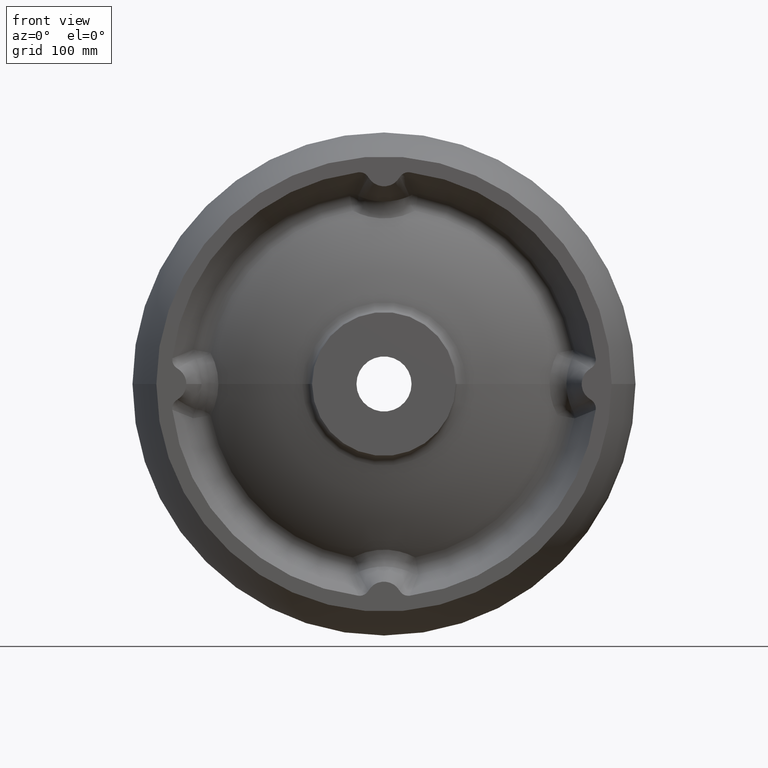
[diagram: clean part render]
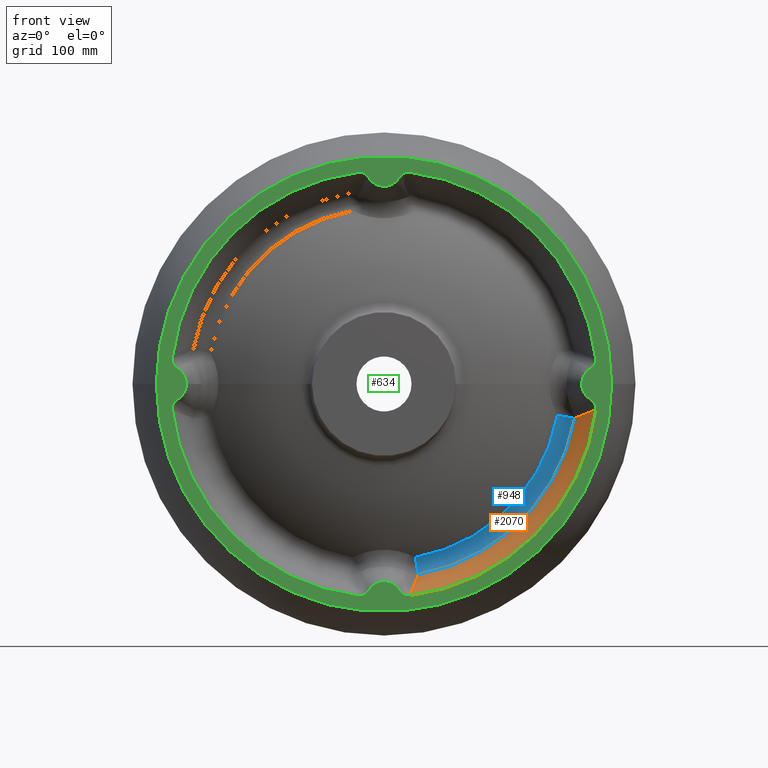
[diagram: same view with three faces highlighted in distinct colors, each labeled with its STEP entity id]
A machine part, front view with three faces highlighted in distinct colors.
Their STEP definitions:

[orange] entity #2070 — the highlighted conical surface has half-angle 30 deg.
#117 = EDGE_CURVE ( 'NONE', #495, #1536, #958, .T. ) ;
#138 = DIRECTION ( 'NONE',  ( -1.246832498358330100E-016, 1.000000000000000000, -0.0000000000000000000 ) ) ;
#153 = CARTESIAN_POINT ( 'NONE',  ( 28.65931379613292100, 28.42218461940035100, -159.0286620201841900 ) ) ;
#156 = AXIS2_PLACEMENT_3D ( 'NONE', #1457, #2312, #340 ) ;
#157 = AXIS2_PLACEMENT_3D ( 'NONE', #2086, #460, #274 ) ;
#180 = CARTESIAN_POINT ( 'NONE',  ( 169.3867513109305200, 11.76288286149700800, -24.92367951654268400 ) ) ;
#269 = CIRCLE ( 'NONE', #465, 178.0000000000000000 ) ;
#274 = DIRECTION ( 'NONE',  ( 1.000000000000000000, 1.246832498358330100E-016, 0.0000000000000000000 ) ) ;
#340 = DIRECTION ( 'NONE',  ( -1.000000000000000000, -1.288237174725316500E-016, 0.0000000000000000000 ) ) ;
#344 = VERTEX_POINT ( 'NONE', #1920 ) ;
#385 = ORIENTED_EDGE ( 'NONE', *, *, #2129, .F. ) ;
#460 = DIRECTION ( 'NONE',  ( 1.246832498358330100E-016, -1.000000000000000000, 0.0000000000000000000 ) ) ;
#465 = AXIS2_PLACEMENT_3D ( 'NONE', #1240, #138, #1428 ) ;
#495 = VERTEX_POINT ( 'NONE', #1084 ) ;
#496 = CARTESIAN_POINT ( 'NONE',  ( 28.65931379613292100, 28.42218461940035100, -159.0286620201841900 ) ) ;
#569 = CARTESIAN_POINT ( 'NONE',  ( 170.8561134018490300, 9.398945296449575400, -24.30111663218698900 ) ) ;
#668 = B_SPLINE_CURVE_WITH_KNOTS ( 'NONE', 3,
 ( #748, #2230, #2321, #569, #180, #1987, #1100, #917 ),
 .UNSPECIFIED., .F., .F.,
 ( 4, 2, 2, 4 ),
 ( 1.181742429579227300E-017, 0.008556115721820944600, 0.01711223144364187500, 0.03422446288728380600 ),
 .UNSPECIFIED. ) ;
#674 = EDGE_CURVE ( 'NONE', #2205, #495, #668, .T. ) ;
#748 = CARTESIAN_POINT ( 'NONE',  ( 176.6972662686038400, 4.422480786625532200E-014, -21.49595527540270000 ) ) ;
#756 = CONICAL_SURFACE ( 'NONE', #157, 178.0000000000000000, 0.5235987755982951500 ) ;
#862 = CARTESIAN_POINT ( 'NONE',  ( 24.92367951654272300, 11.76288286149696000, -169.3867513109306100 ) ) ;
#917 = CARTESIAN_POINT ( 'NONE',  ( 159.0286620201841900, 28.42218461940036900, -28.65931379613291700 ) ) ;
#927 = B_SPLINE_CURVE_WITH_KNOTS ( 'NONE', 3,
 ( #496, #1410, #1948, #862, #2119, #1059, #2284, #1236 ),
 .UNSPECIFIED., .F., .F.,
 ( 4, 2, 2, 4 ),
 ( 4.234999717485956500E-017, 0.01711223144364188600, 0.02566834716546283200, 0.03422446288728377800 ),
 .UNSPECIFIED. ) ;
#958 = CIRCLE ( 'NONE', #156, 161.5904440590321100 ) ;
#1059 = CARTESIAN_POINT ( 'NONE',  ( 22.96954575659356100, 4.686656889367010400, -173.7848634752950000 ) ) ;
#1084 = CARTESIAN_POINT ( 'NONE',  ( 159.0286620201841900, 28.42218461940036900, -28.65931379613291700 ) ) ;
#1100 = CARTESIAN_POINT ( 'NONE',  ( 162.0035003118971400, 23.63892806522817800, -27.72300224751004900 ) ) ;
#1236 = CARTESIAN_POINT ( 'NONE',  ( 21.49595527540274300, 2.487380403284120600E-014, -176.6972662686038100 ) ) ;
#1240 = CARTESIAN_POINT ( 'NONE',  ( -2.767172476553205900E-030, 2.219361847077827600E-014, 0.0000000000000000000 ) ) ;
#1373 = FACE_OUTER_BOUND ( 'NONE', #1412, .T. ) ;
#1410 = CARTESIAN_POINT ( 'NONE',  ( 27.72300224751004900, 23.63892806522815000, -162.0035003118971100 ) ) ;
#1412 = EDGE_LOOP ( 'NONE', ( #385, #1507, #1789, #2253 ) ) ;
#1428 = DIRECTION ( 'NONE',  ( -1.000000000000000000, -1.246832498358330100E-016, 0.0000000000000000000 ) ) ;
#1457 = CARTESIAN_POINT ( 'NONE',  ( -3.543770345780864200E-015, 28.42218461940034800, 0.0000000000000000000 ) ) ;
#1505 = CARTESIAN_POINT ( 'NONE',  ( 176.6972662686038400, 4.422480786625532200E-014, -21.49595527540270000 ) ) ;
#1507 = ORIENTED_EDGE ( 'NONE', *, *, #674, .T. ) ;
#1536 = VERTEX_POINT ( 'NONE', #153 ) ;
#1789 = ORIENTED_EDGE ( 'NONE', *, *, #117, .T. ) ;
#1920 = CARTESIAN_POINT ( 'NONE',  ( 21.49595527540274300, 2.487380403284120600E-014, -176.6972662686038100 ) ) ;
#1948 = CARTESIAN_POINT ( 'NONE',  ( 26.68644674927080000, 18.87355825015472300, -164.9664699156942900 ) ) ;
#1987 = CARTESIAN_POINT ( 'NONE',  ( 164.9664699156943200, 18.87355825015478700, -26.68644674927077900 ) ) ;
#2070 = ADVANCED_FACE ( 'NONE', ( #1373 ), #756, .F. ) ;
#2086 = CARTESIAN_POINT ( 'NONE',  ( -2.767172476553205900E-030, 2.219361847077827600E-014, 0.0000000000000000000 ) ) ;
#2100 = EDGE_CURVE ( 'NONE', #1536, #344, #927, .T. ) ;
#2119 = CARTESIAN_POINT ( 'NONE',  ( 24.30111663218700000, 9.398945296449522100, -170.8561134018490600 ) ) ;
#2129 = EDGE_CURVE ( 'NONE', #2205, #344, #269, .T. ) ;
#2205 = VERTEX_POINT ( 'NONE', #1505 ) ;
#2230 = CARTESIAN_POINT ( 'NONE',  ( 175.2442736087040800, 2.338270349220154600, -22.26073404109447300 ) ) ;
#2253 = ORIENTED_EDGE ( 'NONE', *, *, #2100, .T. ) ;
#2284 = CARTESIAN_POINT ( 'NONE',  ( 22.26073404109475400, 2.338270349220132400, -175.2442736087041300 ) ) ;
#2312 = DIRECTION ( 'NONE',  ( -1.246832498358330100E-016, 1.000000000000000000, -0.0000000000000000000 ) ) ;
#2321 = CARTESIAN_POINT ( 'NONE',  ( 173.7848634752949700, 4.686656889367055700, -22.96954575659355800 ) ) ;

[blue] entity #948 — the highlighted toroidal blend (fillet) surface has major radius 152.93 mm and minor (blend) radius 10 mm.
#57 = EDGE_CURVE ( 'NONE', #495, #1947, #310, .T. ) ;
#117 = EDGE_CURVE ( 'NONE', #495, #1536, #958, .T. ) ;
#153 = CARTESIAN_POINT ( 'NONE',  ( 28.65931379613292100, 28.42218461940035100, -159.0286620201841900 ) ) ;
#156 = AXIS2_PLACEMENT_3D ( 'NONE', #1457, #2312, #340 ) ;
#310 = CIRCLE ( 'NONE', #1305, 10.00000000000000400 ) ;
#316 = ORIENTED_EDGE ( 'NONE', *, *, #57, .T. ) ;
#318 = DIRECTION ( 'NONE',  ( -1.246832498358330100E-016, 1.000000000000000000, -0.0000000000000000000 ) ) ;
#321 = AXIS2_PLACEMENT_3D ( 'NONE', #815, #742, #1302 ) ;
#340 = DIRECTION ( 'NONE',  ( -1.000000000000000000, -1.288237174725316500E-016, 0.0000000000000000000 ) ) ;
#369 = CARTESIAN_POINT ( 'NONE',  ( -3.928191035730102100E-015, 31.50536291684923600, 0.0000000000000000000 ) ) ;
#383 = TOROIDAL_SURFACE ( 'NONE', #2144, 152.9301900211876800, 10.00000000000000200 ) ;
#495 = VERTEX_POINT ( 'NONE', #1084 ) ;
#568 = DIRECTION ( 'NONE',  ( -1.000000000000000000, -1.415689319018795900E-016, 0.0000000000000000000 ) ) ;
#645 = EDGE_CURVE ( 'NONE', #1639, #1536, #1472, .T. ) ;
#742 = DIRECTION ( 'NONE',  ( -0.9841464509008217600, -1.227065778127155300E-016, -0.1773577265847664500 ) ) ;
#759 = EDGE_LOOP ( 'NONE', ( #904, #316, #1966, #969 ) ) ;
#785 = CIRCLE ( 'NONE', #1114, 147.0427263387815600 ) ;
#803 = DIRECTION ( 'NONE',  ( 0.1773577265847669500, 2.211353773408386200E-017, 0.9841464509008215300 ) ) ;
#815 = CARTESIAN_POINT ( 'NONE',  ( 27.12335082833418200, 23.42218461940034000, -150.5057037449401200 ) ) ;
#904 = ORIENTED_EDGE ( 'NONE', *, *, #117, .F. ) ;
#948 = ADVANCED_FACE ( 'NONE', ( #2254 ), #383, .F. ) ;
#958 = CIRCLE ( 'NONE', #156, 161.5904440590321100 ) ;
#969 = ORIENTED_EDGE ( 'NONE', *, *, #645, .T. ) ;
#1084 = CARTESIAN_POINT ( 'NONE',  ( 159.0286620201841900, 28.42218461940036900, -28.65931379613291700 ) ) ;
#1114 = AXIS2_PLACEMENT_3D ( 'NONE', #369, #1825, #568 ) ;
#1184 = CARTESIAN_POINT ( 'NONE',  ( 26.07916365427227800, 31.50536291684923600, -144.7115772570926400 ) ) ;
#1302 = DIRECTION ( 'NONE',  ( -0.1773577265847664500, 0.0000000000000000000, 0.9841464509008215300 ) ) ;
#1305 = AXIS2_PLACEMENT_3D ( 'NONE', #2073, #803, #2210 ) ;
#1421 = CARTESIAN_POINT ( 'NONE',  ( 144.7115772570926400, 31.50536291684925800, -26.07916365427232800 ) ) ;
#1457 = CARTESIAN_POINT ( 'NONE',  ( -3.543770345780864200E-015, 28.42218461940034800, 0.0000000000000000000 ) ) ;
#1472 = CIRCLE ( 'NONE', #321, 10.00000000000000400 ) ;
#1536 = VERTEX_POINT ( 'NONE', #153 ) ;
#1551 = EDGE_CURVE ( 'NONE', #1947, #1639, #785, .T. ) ;
#1590 = DIRECTION ( 'NONE',  ( -1.000000000000000000, -1.246832498358330100E-016, 0.0000000000000000000 ) ) ;
#1639 = VERTEX_POINT ( 'NONE', #1184 ) ;
#1802 = CARTESIAN_POINT ( 'NONE',  ( 0.0000000000000000000, 23.42218461940034000, 0.0000000000000000000 ) ) ;
#1825 = DIRECTION ( 'NONE',  ( -1.246832498358330100E-016, 1.000000000000000000, -0.0000000000000000000 ) ) ;
#1947 = VERTEX_POINT ( 'NONE', #1421 ) ;
#1966 = ORIENTED_EDGE ( 'NONE', *, *, #1551, .T. ) ;
#2073 = CARTESIAN_POINT ( 'NONE',  ( 150.5057037449400900, 23.42218461940035500, -27.12335082833426000 ) ) ;
#2144 = AXIS2_PLACEMENT_3D ( 'NONE', #1802, #318, #1590 ) ;
#2210 = DIRECTION ( 'NONE',  ( -0.9841464509008215300, -1.734723475976806500E-015, 0.1773577265847668100 ) ) ;
#2254 = FACE_OUTER_BOUND ( 'NONE', #759, .T. ) ;
#2312 = DIRECTION ( 'NONE',  ( -1.246832498358330100E-016, 1.000000000000000000, -0.0000000000000000000 ) ) ;

[green] entity #634 — the highlighted planar face has unit normal (0, -1, 0).
#10 = CARTESIAN_POINT ( 'NONE',  ( -13.17855603793288200, 2.129857277484015800E-014, 172.8232169972353600 ) ) ;
#12 = CARTESIAN_POINT ( 'NONE',  ( 21.49595527540271100, 2.487380403284120300E-014, 176.6972662686038400 ) ) ;
#22 = CARTESIAN_POINT ( 'NONE',  ( 18.56400656979678800, 2.525633863888930000E-014, -176.5911509117827300 ) ) ;
#39 = CARTESIAN_POINT ( 'NONE',  ( 17.33970199454434900, 2.510368836565794400E-014, 176.2268837362088900 ) ) ;
#58 = CARTESIAN_POINT ( 'NONE',  ( -16.39717339384684900, 2.089726510292679500E-014, 175.8029064034422200 ) ) ;
#63 = CARTESIAN_POINT ( 'NONE',  ( 190.0000000000000000, 4.737963493761654400E-014, 2.427685421779522900E-014 ) ) ;
#69 = CARTESIAN_POINT ( 'NONE',  ( -176.7998115537818400, 2.346368859775374100E-014, -20.65303057968486300 ) ) ;
#75 = EDGE_CURVE ( 'NONE', #613, #1929, #2199, .T. ) ;
#80 = CARTESIAN_POINT ( 'NONE',  ( -20.65281570066490600, 1.961855829095885600E-014, 176.7998376947058100 ) ) ;
#87 = CARTESIAN_POINT ( 'NONE',  ( -172.4559522695812700, -2.150236858250469600E-014, 12.96485032081603900 ) ) ;
#93 = CARTESIAN_POINT ( 'NONE',  ( 174.7374849878241000, 4.472855546621527800E-014, 14.82790346768958000 ) ) ;
#94 = CARTESIAN_POINT ( 'NONE',  ( -176.7218478899044400, 9.074636578862421700E-016, 19.38099947473587300 ) ) ;
#104 = ORIENTED_EDGE ( 'NONE', *, *, #2132, .T. ) ;
#108 = VERTEX_POINT ( 'NONE', #1599 ) ;
#112 = CARTESIAN_POINT ( 'NONE',  ( -19.80168271063483200, 2.047277981721329300E-014, -176.7584017454754500 ) ) ;
#114 = CARTESIAN_POINT ( 'NONE',  ( -173.8428197016612800, 1.266430248765358200E-015, -13.93768361220912600 ) ) ;
#119 = FACE_OUTER_BOUND ( 'NONE', #1624, .T. ) ;
#134 = EDGE_CURVE ( 'NONE', #416, #1448, #518, .T. ) ;
#138 = DIRECTION ( 'NONE',  ( -1.246832498358330100E-016, 1.000000000000000000, -0.0000000000000000000 ) ) ;
#159 = CARTESIAN_POINT ( 'NONE',  ( 172.4559522695812700, 2.150236858250469600E-014, 12.96485032081608100 ) ) ;
#168 = CARTESIAN_POINT ( 'NONE',  ( 174.7300489355366200, 4.472762831505011300E-014, -14.81915057491451100 ) ) ;
#182 = B_SPLINE_CURVE_WITH_KNOTS ( 'NONE', 3,
 ( #399, #565, #211, #582, #1859, #765, #959, #2202, #1150, #39, #1326, #218, #1516, #406, #591, #2045, #1868, #1704 ),
 .UNSPECIFIED., .F., .F.,
 ( 4, 2, 2, 2, 2, 2, 2, 2, 4 ),
 ( 0.0000000000000000000, 0.002514586182561338500, 0.003771879273842007300, 0.005029172365122677000, 0.005657818910763002600, 0.006286465456403328100, 0.007543758547684004300, 0.008801051638964680500, 0.01005834473024535600 ),
 .UNSPECIFIED. ) ;
#195 = B_SPLINE_CURVE_WITH_KNOTS ( 'NONE', 3,
 ( #87, #1908, #809, #1377, #261, #1563, #636, #1915, #1020, #2257, #1201, #94, #1385, #273, #1572, #1745 ),
 .UNSPECIFIED., .F., .F.,
 ( 4, 2, 2, 2, 2, 2, 2, 4 ),
 ( 9.244463733058732100E-033, 0.002515083484769500100, 0.003772625227154278800, 0.005030166969539058400, 0.006287708711923836200, 0.007545250454308615800, 0.008802792196693394500, 0.01006033393907817400 ),
 .UNSPECIFIED. ) ;
#208 = CIRCLE ( 'NONE', #1644, 15.00000000000001600 ) ;
#211 = CARTESIAN_POINT ( 'NONE',  ( 13.90549850816730000, 2.467550071437889700E-014, 173.8528520669922800 ) ) ;
#214 = CARTESIAN_POINT ( 'NONE',  ( -15.84919790610596000, 2.096558846756869500E-014, 175.4862787645381000 ) ) ;
#218 = CARTESIAN_POINT ( 'NONE',  ( 18.14387099379243700, 2.520395476990142000E-014, 176.4919092151948800 ) ) ;
#220 = CARTESIAN_POINT ( 'NONE',  ( 16.96062914966689300, 2.505642433143410600E-014, -176.0821129393198100 ) ) ;
#238 = CARTESIAN_POINT ( 'NONE',  ( -2.767172476553205900E-030, 2.219361847077827600E-014, 0.0000000000000000000 ) ) ;
#244 = CARTESIAN_POINT ( 'NONE',  ( -180.0000000000000000, -2.244298497044994200E-014, -3.306546357697853400E-014 ) ) ;
#249 = CARTESIAN_POINT ( 'NONE',  ( -2.767172476553205900E-030, 2.219361847077827600E-014, 0.0000000000000000000 ) ) ;
#251 = CARTESIAN_POINT ( 'NONE',  ( -2.953723430028702900E-030, 2.368981746880827200E-014, 0.0000000000000000000 ) ) ;
#258 = EDGE_CURVE ( 'NONE', #1581, #2185, #182, .T. ) ;
#261 = CARTESIAN_POINT ( 'NONE',  ( -175.0018549736488200, 1.121917964379599400E-015, 15.14806455226157300 ) ) ;
#266 = CARTESIAN_POINT ( 'NONE',  ( 14.82787764444783100, 2.479050594267112900E-014, -174.7374610815326700 ) ) ;
#267 = CARTESIAN_POINT ( 'NONE',  ( 173.8428197016613100, 4.461700569082119000E-014, 13.93768361220909900 ) ) ;
#269 = CIRCLE ( 'NONE', #465, 178.0000000000000000 ) ;
#271 = ORIENTED_EDGE ( 'NONE', *, *, #1986, .T. ) ;
#273 = CARTESIAN_POINT ( 'NONE',  ( -176.7717128132499100, 9.012463371907133500E-016, 20.65140335330724100 ) ) ;
#282 = CARTESIAN_POINT ( 'NONE',  ( -17.53960783713949900, 2.075482266381267800E-014, -176.2991702713998200 ) ) ;
#285 = VERTEX_POINT ( 'NONE', #63 ) ;
#298 = EDGE_CURVE ( 'NONE', #1228, #285, #1329, .T. ) ;
#301 = DIRECTION ( 'NONE',  ( -1.246832498358330100E-016, 1.000000000000000000, -0.0000000000000000000 ) ) ;
#322 = AXIS2_PLACEMENT_3D ( 'NONE', #1488, #374, #1661 ) ;
#331 = CARTESIAN_POINT ( 'NONE',  ( 12.96485032081609400, 1.616499671634494200E-015, -172.4559522695812700 ) ) ;
#333 = EDGE_CURVE ( 'NONE', #1903, #1711, #195, .T. ) ;
#335 = AXIS2_PLACEMENT_3D ( 'NONE', #249, #2106, #472 ) ;
#344 = VERTEX_POINT ( 'NONE', #1920 ) ;
#353 = CARTESIAN_POINT ( 'NONE',  ( 175.4857701362977600, 4.482185409033084600E-014, -15.83358716798267600 ) ) ;
#371 = CARTESIAN_POINT ( 'NONE',  ( 18.14846957970074500, 2.520452813653712000E-014, -176.4929778570227400 ) ) ;
#374 = DIRECTION ( 'NONE',  ( 1.246832498358330100E-016, -1.000000000000000000, 0.0000000000000000000 ) ) ;
#393 = EDGE_CURVE ( 'NONE', #2185, #108, #1221, .T. ) ;
#399 = CARTESIAN_POINT ( 'NONE',  ( 12.96485032081607100, 1.616499671634490000E-015, 172.4559522695812700 ) ) ;
#403 = VERTEX_POINT ( 'NONE', #1888 ) ;
#406 = CARTESIAN_POINT ( 'NONE',  ( 19.38098351557206200, 2.535820197952950500E-014, 176.7218446333453100 ) ) ;
#410 = ORIENTED_EDGE ( 'NONE', *, *, #75, .T. ) ;
#416 = VERTEX_POINT ( 'NONE', #159 ) ;
#432 = DIRECTION ( 'NONE',  ( -1.000000000000000000, -1.246832498358330100E-016, 0.0000000000000000000 ) ) ;
#440 = ORIENTED_EDGE ( 'NONE', *, *, #333, .T. ) ;
#441 = DIRECTION ( 'NONE',  ( -1.000000000000000000, -1.246832498358330100E-016, 0.0000000000000000000 ) ) ;
#458 = CARTESIAN_POINT ( 'NONE',  ( 13.17851623253726400, 2.458485820168029600E-014, -172.8231485895296900 ) ) ;
#459 = CARTESIAN_POINT ( 'NONE',  ( 172.8231040903990800, 4.448986423450068100E-014, 13.17849033917505100 ) ) ;
#465 = AXIS2_PLACEMENT_3D ( 'NONE', #1240, #138, #1428 ) ;
#472 = DIRECTION ( 'NONE',  ( -1.000000000000000000, -1.246832498358330100E-016, 0.0000000000000000000 ) ) ;
#480 = CARTESIAN_POINT ( 'NONE',  ( -176.4929411895913100, 9.360044891904814000E-016, -18.14834581415249900 ) ) ;
#490 = CARTESIAN_POINT ( 'NONE',  ( -12.96485032081604900, -1.616499671634487300E-015, -172.4559522695812700 ) ) ;
#508 = CARTESIAN_POINT ( 'NONE',  ( -17.33898963698055700, 2.077983639298470900E-014, -176.2266110118619600 ) ) ;
#518 = CIRCLE ( 'NONE', #869, 15.00000000000001400 ) ;
#542 = CARTESIAN_POINT ( 'NONE',  ( 176.0749752005519000, 4.489531809256178400E-014, -16.94418319354525300 ) ) ;
#564 = CARTESIAN_POINT ( 'NONE',  ( -2.767172476553205900E-030, 2.219361847077827600E-014, 0.0000000000000000000 ) ) ;
#565 = CARTESIAN_POINT ( 'NONE',  ( 13.39195225688811600, -1.040699430487695900E-015, 173.1899498357125000 ) ) ;
#577 = AXIS2_PLACEMENT_3D ( 'NONE', #251, #1555, #441 ) ;
#581 = CIRCLE ( 'NONE', #1117, 178.0000000000000000 ) ;
#582 = CARTESIAN_POINT ( 'NONE',  ( 14.81872877036857800, 2.478936523131857800E-014, 174.7296696659715800 ) ) ;
#591 = CARTESIAN_POINT ( 'NONE',  ( 19.80224173656163700, 2.541072582354255800E-014, 176.7584275735419800 ) ) ;
#604 = CARTESIAN_POINT ( 'NONE',  ( -14.22152085666691500, 2.116853253177596600E-014, 174.1572299136034300 ) ) ;
#613 = VERTEX_POINT ( 'NONE', #1349 ) ;
#625 = CARTESIAN_POINT ( 'NONE',  ( 172.4559522695812700, 2.150236858250469600E-014, -12.96485032081606200 ) ) ;
#627 = CARTESIAN_POINT ( 'NONE',  ( -15.67019710411779500, 2.098790686928380600E-014, 175.3701783323787100 ) ) ;
#633 = CARTESIAN_POINT ( 'NONE',  ( -18.14865600027874500, 2.067888455952592500E-014, 176.4930340092267300 ) ) ;
#634 = ADVANCED_FACE ( 'NONE', ( #1945, #119 ), #2215, .T. ) ;
#635 = CARTESIAN_POINT ( 'NONE',  ( 176.5910729573452000, 4.495966683811177800E-014, 18.56360227307535000 ) ) ;
#636 = CARTESIAN_POINT ( 'NONE',  ( -175.7005297224564200, 1.034804926120036800E-015, 16.19272926284681100 ) ) ;
#642 = CARTESIAN_POINT ( 'NONE',  ( 15.15150842941244300, 2.483085728068743300E-014, -175.0047292892765300 ) ) ;
#652 = VERTEX_POINT ( 'NONE', #1122 ) ;
#663 = CARTESIAN_POINT ( 'NONE',  ( -176.0821051470807400, 9.872288621203907400E-016, -16.96058165826875800 ) ) ;
#676 = CARTESIAN_POINT ( 'NONE',  ( -172.4559522695812700, -2.150236858250469600E-014, -12.96485032081610500 ) ) ;
#701 = CIRCLE ( 'NONE', #322, 15.00000000000001600 ) ;
#718 = CARTESIAN_POINT ( 'NONE',  ( -16.94727656911304700, 2.082867645128959600E-014, -176.0675948900012300 ) ) ;
#721 = CARTESIAN_POINT ( 'NONE',  ( 172.4559522695812700, 2.150236858250469600E-014, -12.96485032081606200 ) ) ;
#728 = DIRECTION ( 'NONE',  ( 1.246832498358330100E-016, -1.000000000000000000, 0.0000000000000000000 ) ) ;
#729 = CARTESIAN_POINT ( 'NONE',  ( 176.4919312595394300, 4.494730552903508200E-014, -18.14405608572526100 ) ) ;
#734 = EDGE_CURVE ( 'NONE', #403, #1105, #1467, .T. ) ;
#765 = CARTESIAN_POINT ( 'NONE',  ( 15.83362113981329600, 2.491590531017455000E-014, 175.4857982653468300 ) ) ;
#794 = EDGE_CURVE ( 'NONE', #344, #2007, #1839, .T. ) ;
#809 = CARTESIAN_POINT ( 'NONE',  ( -173.8528769731769900, 1.265176275468304000E-015, 13.90547091533642300 ) ) ;
#817 = CARTESIAN_POINT ( 'NONE',  ( 176.2386674391553400, 4.491572777284376500E-014, 17.34865205752796800 ) ) ;
#825 = B_SPLINE_CURVE_WITH_KNOTS ( 'NONE', 3,
 ( #490, #1455, #2310, #1194, #2125, #853, #838, #883, #718, #508, #282, #2081, #827, #2250, #112, #2317, #1576, #1981 ),
 .UNSPECIFIED., .F., .F.,
 ( 4, 2, 2, 2, 2, 2, 2, 2, 4 ),
 ( 9.244463733058732100E-033, 0.002514272648369120200, 0.003771408972553680300, 0.005028545296738244800, 0.005657113458830550900, 0.006285681620922856100, 0.007542817945107457800, 0.008799954269292059600, 0.01005709059347666000 ),
 .UNSPECIFIED. ) ;
#827 = CARTESIAN_POINT ( 'NONE',  ( -18.55241572914258400, 2.062854248437835200E-014, -176.5885891716627900 ) ) ;
#838 = CARTESIAN_POINT ( 'NONE',  ( -16.19268830399933600, 2.092276096847195500E-014, -175.7004769067158100 ) ) ;
#845 = CARTESIAN_POINT ( 'NONE',  ( -175.4906970384028300, 1.060967547089617000E-015, -15.84116026193130000 ) ) ;
#853 = CARTESIAN_POINT ( 'NONE',  ( -15.83365971490170700, 2.096752581974462500E-014, -175.4858276268543900 ) ) ;
#869 = AXIS2_PLACEMENT_3D ( 'NONE', #1817, #728, #1993 ) ;
#883 = CARTESIAN_POINT ( 'NONE',  ( -16.75557755970465800, 2.085257810677293900E-014, -175.9810101912439700 ) ) ;
#894 = EDGE_CURVE ( 'NONE', #1998, #652, #825, .T. ) ;
#914 = CARTESIAN_POINT ( 'NONE',  ( 176.7218478899043800, 4.497597228170029900E-014, -19.38099947473588700 ) ) ;
#936 = ORIENTED_EDGE ( 'NONE', *, *, #1144, .T. ) ;
#946 = DIRECTION ( 'NONE',  ( 1.246832498358330100E-016, -1.000000000000000000, 0.0000000000000000000 ) ) ;
#959 = CARTESIAN_POINT ( 'NONE',  ( 16.19268814339794500, 2.496067495109029600E-014, 175.7004880603302600 ) ) ;
#962 = DIRECTION ( 'NONE',  ( 1.000000000000000000, 1.246832498358331100E-016, 0.0000000000000000000 ) ) ;
#967 = ORIENTED_EDGE ( 'NONE', *, *, #1641, .T. ) ;
#991 = CARTESIAN_POINT ( 'NONE',  ( 21.49595527540274300, 2.487380403284120600E-014, -176.6972662686038100 ) ) ;
#1004 = CARTESIAN_POINT ( 'NONE',  ( -21.49595527540273200, 1.951343290871534200E-014, 176.6972662686038400 ) ) ;
#1010 = ORIENTED_EDGE ( 'NONE', *, *, #2261, .T. ) ;
#1018 = CARTESIAN_POINT ( 'NONE',  ( 175.7092994724739000, 4.484972445439893800E-014, 16.20832609865974700 ) ) ;
#1020 = CARTESIAN_POINT ( 'NONE',  ( -176.2356074123505600, 9.680897008293870300E-016, 17.34015957064680800 ) ) ;
#1025 = CARTESIAN_POINT ( 'NONE',  ( -16.21242087429621000, 2.092030064747972700E-014, 175.7024210648901000 ) ) ;
#1042 = CARTESIAN_POINT ( 'NONE',  ( -175.0046346470895700, 1.121571385661531800E-015, -15.15141805840302600 ) ) ;
#1063 = DIRECTION ( 'NONE',  ( 1.246832498358330100E-016, -1.000000000000000000, 0.0000000000000000000 ) ) ;
#1093 = DIRECTION ( 'NONE',  ( 1.000000000000000000, 1.246832498358331100E-016, 0.0000000000000000000 ) ) ;
#1105 = VERTEX_POINT ( 'NONE', #2028 ) ;
#1108 = CARTESIAN_POINT ( 'NONE',  ( 176.7717128132499600, 4.498218960239585100E-014, -20.65140335330727000 ) ) ;
#1117 = AXIS2_PLACEMENT_3D ( 'NONE', #238, #1540, #432 ) ;
#1121 = DIRECTION ( 'NONE',  ( 1.246832498358330100E-016, -1.000000000000000000, 0.0000000000000000000 ) ) ;
#1122 = CARTESIAN_POINT ( 'NONE',  ( -21.49595527540268600, 1.951343290871534900E-014, -176.6972662686038100 ) ) ;
#1126 = CARTESIAN_POINT ( 'NONE',  ( -180.0000000000000000, -2.244298497044994200E-014, -3.306546357697853400E-014 ) ) ;
#1134 = CARTESIAN_POINT ( 'NONE',  ( 2.204364238465235800E-014, 2.748472970737367900E-030, -180.0000000000000000 ) ) ;
#1135 = CARTESIAN_POINT ( 'NONE',  ( 13.41530378195076000, 2.461438164286183500E-014, -173.1744620360200900 ) ) ;
#1142 = ORIENTED_EDGE ( 'NONE', *, *, #1287, .T. ) ;
#1144 = EDGE_CURVE ( 'NONE', #2007, #1998, #208, .T. ) ;
#1150 = CARTESIAN_POINT ( 'NONE',  ( 16.94766396893765000, 2.505480779056607300E-014, 176.0677685666296400 ) ) ;
#1153 = CARTESIAN_POINT ( 'NONE',  ( -16.96064773171749700, 2.082700929128198900E-014, 176.0821032781486500 ) ) ;
#1161 = CARTESIAN_POINT ( 'NONE',  ( -2.860447953290954400E-030, 2.294171796979327400E-014, 0.0000000000000000000 ) ) ;
#1187 = CARTESIAN_POINT ( 'NONE',  ( 176.6972662686038100, 4.422480786625531600E-014, 21.49595527540272500 ) ) ;
#1194 = CARTESIAN_POINT ( 'NONE',  ( -14.81846836108800700, 2.109410317694335400E-014, -174.7294352998865500 ) ) ;
#1198 = CARTESIAN_POINT ( 'NONE',  ( 175.0046346470895200, 4.476186455392500900E-014, 15.15141805840300300 ) ) ;
#1201 = CARTESIAN_POINT ( 'NONE',  ( -176.5885758925645100, 9.240804436267003900E-016, 18.55234548048311500 ) ) ;
#1207 = CARTESIAN_POINT ( 'NONE',  ( -13.41545039078164300, 2.126903601705922200E-014, 173.1746952051613600 ) ) ;
#1221 = CIRCLE ( 'NONE', #1529, 178.0000000000000000 ) ;
#1222 = CARTESIAN_POINT ( 'NONE',  ( -174.7374849878240500, 1.154880473371286900E-015, -14.82790346768961400 ) ) ;
#1228 = VERTEX_POINT ( 'NONE', #1439 ) ;
#1232 = AXIS2_PLACEMENT_3D ( 'NONE', #1762, #2101, #1870 ) ;
#1240 = CARTESIAN_POINT ( 'NONE',  ( -2.767172476553205900E-030, 2.219361847077827600E-014, 0.0000000000000000000 ) ) ;
#1269 = AXIS2_PLACEMENT_3D ( 'NONE', #244, #1121, #1093 ) ;
#1273 = CARTESIAN_POINT ( 'NONE',  ( 173.8528769731770200, 4.461825966411824900E-014, -13.90547091533645000 ) ) ;
#1281 = CARTESIAN_POINT ( 'NONE',  ( 176.6972662686038400, 4.422480786625532200E-014, -21.49595527540270000 ) ) ;
#1284 = CARTESIAN_POINT ( 'NONE',  ( 17.34862500247387700, 2.510480091528490800E-014, -176.2386615218457300 ) ) ;
#1287 = EDGE_CURVE ( 'NONE', #1929, #1478, #1973, .T. ) ;
#1293 = CARTESIAN_POINT ( 'NONE',  ( -12.96485032081607100, -1.616499671634490000E-015, 172.4559522695812700 ) ) ;
#1326 = CARTESIAN_POINT ( 'NONE',  ( 17.54023393875353100, 2.512869134015783700E-014, 176.2993829519491300 ) ) ;
#1328 = CARTESIAN_POINT ( 'NONE',  ( -13.93866697253395900, 2.120379967327834800E-014, 173.8440017698762600 ) ) ;
#1329 = CIRCLE ( 'NONE', #577, 190.0000000000000000 ) ;
#1340 = EDGE_CURVE ( 'NONE', #285, #1228, #1936, .T. ) ;
#1349 = CARTESIAN_POINT ( 'NONE',  ( -176.6972662686038100, 1.624290753012335600E-016, -21.49595527540276100 ) ) ;
#1368 = CARTESIAN_POINT ( 'NONE',  ( 176.7998115537818600, 3.750193617594672500E-014, 20.65303057968483500 ) ) ;
#1377 = CARTESIAN_POINT ( 'NONE',  ( -174.7300489355366700, 1.155807624536436700E-015, 14.81915057491448600 ) ) ;
#1384 = CARTESIAN_POINT ( 'NONE',  ( 174.1572561849159500, 4.465621065342032600E-014, 14.22154410489461500 ) ) ;
#1385 = CARTESIAN_POINT ( 'NONE',  ( -176.7584669515497900, 9.028978742743561700E-016, 19.80309636150066800 ) ) ;
#1395 = ORIENTED_EDGE ( 'NONE', *, *, #298, .F. ) ;
#1396 = CARTESIAN_POINT ( 'NONE',  ( -176.7901466313116400, 8.989479488478869100E-016, -19.81442043113620600 ) ) ;
#1403 = CARTESIAN_POINT ( 'NONE',  ( -172.8231040903990300, 1.393571705085873400E-015, -13.17849033917507000 ) ) ;
#1419 = ORIENTED_EDGE ( 'NONE', *, *, #734, .T. ) ;
#1428 = DIRECTION ( 'NONE',  ( -1.000000000000000000, -1.246832498358330100E-016, 0.0000000000000000000 ) ) ;
#1430 = AXIS2_PLACEMENT_3D ( 'NONE', #1126, #1063, #962 ) ;
#1439 = CARTESIAN_POINT ( 'NONE',  ( -190.0000000000000000, 0.0000000000000000000, 0.0000000000000000000 ) ) ;
#1448 = VERTEX_POINT ( 'NONE', #625 ) ;
#1455 = CARTESIAN_POINT ( 'NONE',  ( -13.39199241940252000, -3.502839597915674500E-015, -173.1900188571459000 ) ) ;
#1464 = CARTESIAN_POINT ( 'NONE',  ( 175.0018549736488500, 4.476151797520695500E-014, -15.14806455226159300 ) ) ;
#1466 = CARTESIAN_POINT ( 'NONE',  ( -164.9999999999999700, -2.057273622291244700E-014, -3.306546357697853400E-014 ) ) ;
#1467 = B_SPLINE_CURVE_WITH_KNOTS ( 'NONE', 3,
 ( #1004, #80, #2169, #1727, #633, #2173, #1153, #58, #1025, #214, #627, #1749, #1692, #604, #1328, #1207, #10, #1293 ),
 .UNSPECIFIED., .F., .F.,
 ( 4, 2, 2, 2, 2, 2, 2, 2, 4 ),
 ( 3.469446951953613800E-018, 0.002514208488207910700, 0.003771312732311863700, 0.005028416976415816200, 0.005656969098467815000, 0.006285521220519814700, 0.007542625464623765500, 0.008799729708727718100, 0.01005683395283166900 ),
 .UNSPECIFIED. ) ;
#1473 = CARTESIAN_POINT ( 'NONE',  ( -12.96485032081604900, -1.616499671634487300E-015, -172.4559522695812700 ) ) ;
#1478 = VERTEX_POINT ( 'NONE', #1466 ) ;
#1488 = CARTESIAN_POINT ( 'NONE',  ( 0.0000000000000000000, 0.0000000000000000000, 180.0000000000000000 ) ) ;
#1503 = B_SPLINE_CURVE_WITH_KNOTS ( 'NONE', 3,
 ( #1187, #1368, #1728, #635, #1913, #817, #2083, #1018, #2252, #1198, #93, #1384, #267, #1570, #459, #1738 ),
 .UNSPECIFIED., .F., .F.,
 ( 4, 2, 2, 2, 2, 2, 2, 4 ),
 ( 3.469446951953614200E-018, 0.002515086786801934900, 0.003772630180202888500, 0.005030173573603843000, 0.006287716967004797900, 0.007545260360405751100, 0.008802803753806706000, 0.01006034714720766000 ),
 .UNSPECIFIED. ) ;
#1505 = CARTESIAN_POINT ( 'NONE',  ( 176.6972662686038400, 4.422480786625532200E-014, -21.49595527540270000 ) ) ;
#1516 = CARTESIAN_POINT ( 'NONE',  ( 18.55238900129032900, 2.525489012269272300E-014, 176.5885835818253300 ) ) ;
#1522 = CARTESIAN_POINT ( 'NONE',  ( 12.96485032081609400, 1.616499671634494200E-015, -172.4559522695812700 ) ) ;
#1529 = AXIS2_PLACEMENT_3D ( 'NONE', #564, #301, #1626 ) ;
#1540 = DIRECTION ( 'NONE',  ( -1.246832498358330100E-016, 1.000000000000000000, -0.0000000000000000000 ) ) ;
#1543 = ORIENTED_EDGE ( 'NONE', *, *, #1340, .F. ) ;
#1555 = DIRECTION ( 'NONE',  ( -1.246832498358330100E-016, 1.000000000000000000, -0.0000000000000000000 ) ) ;
#1563 = CARTESIAN_POINT ( 'NONE',  ( -175.4857701362977900, 1.061581849255702500E-015, 15.83358716798266600 ) ) ;
#1570 = CARTESIAN_POINT ( 'NONE',  ( 173.1743075483942100, 4.453365342299708100E-014, 13.41520679044525200 ) ) ;
#1572 = CARTESIAN_POINT ( 'NONE',  ( -176.7485645689658900, 9.041325355160366100E-016, 21.07428202003581000 ) ) ;
#1576 = CARTESIAN_POINT ( 'NONE',  ( -21.07416355537050000, 2.031412277013780300E-014, -176.7485789806837000 ) ) ;
#1581 = VERTEX_POINT ( 'NONE', #2204 ) ;
#1589 = CARTESIAN_POINT ( 'NONE',  ( -176.5910729573452000, 9.237691014747884600E-016, -18.56360227307538200 ) ) ;
#1593 = CARTESIAN_POINT ( 'NONE',  ( -172.4559522695812700, -2.150236858250469600E-014, -12.96485032081610500 ) ) ;
#1599 = CARTESIAN_POINT ( 'NONE',  ( 176.6972662686038100, 4.422480786625531600E-014, 21.49595527540272500 ) ) ;
#1603 = CARTESIAN_POINT ( 'NONE',  ( -172.4559522695812700, -2.150236858250469600E-014, 12.96485032081603900 ) ) ;
#1624 = EDGE_LOOP ( 'NONE', ( #1395, #1543 ) ) ;
#1626 = DIRECTION ( 'NONE',  ( -1.000000000000000000, -1.246832498358330100E-016, 0.0000000000000000000 ) ) ;
#1641 = EDGE_CURVE ( 'NONE', #1478, #1903, #2161, .T. ) ;
#1644 = AXIS2_PLACEMENT_3D ( 'NONE', #1134, #1666, #2306 ) ;
#1647 = CARTESIAN_POINT ( 'NONE',  ( 175.7005297224563900, 4.484863101346649300E-014, -16.19272926284683900 ) ) ;
#1661 = DIRECTION ( 'NONE',  ( 1.000000000000000000, 1.246832498358330100E-016, 0.0000000000000000000 ) ) ;
#1666 = DIRECTION ( 'NONE',  ( 1.246832498358330100E-016, -1.000000000000000000, 0.0000000000000000000 ) ) ;
#1692 = CARTESIAN_POINT ( 'NONE',  ( -14.82784078039044600, 2.109293459324589600E-014, 174.7374290263570600 ) ) ;
#1704 = CARTESIAN_POINT ( 'NONE',  ( 21.49595527540271100, 2.487380403284120300E-014, 176.6972662686038400 ) ) ;
#1711 = VERTEX_POINT ( 'NONE', #2017 ) ;
#1716 = CARTESIAN_POINT ( 'NONE',  ( 20.65294710053336400, 4.992332275176079400E-014, -176.7998217093668200 ) ) ;
#1727 = CARTESIAN_POINT ( 'NONE',  ( -18.56457538879759600, 2.062702637849566300E-014, 176.5912602959490400 ) ) ;
#1728 = CARTESIAN_POINT ( 'NONE',  ( 176.7901466313115900, 4.498448799073865400E-014, 19.81442043113616000 ) ) ;
#1729 = ORIENTED_EDGE ( 'NONE', *, *, #2129, .T. ) ;
#1732 = ORIENTED_EDGE ( 'NONE', *, *, #1775, .T. ) ;
#1737 = CARTESIAN_POINT ( 'NONE',  ( 14.22155275816012000, 2.471490738539243200E-014, -174.1572636611332700 ) ) ;
#1738 = CARTESIAN_POINT ( 'NONE',  ( 172.4559522695812700, 2.150236858250469600E-014, 12.96485032081608100 ) ) ;
#1745 = CARTESIAN_POINT ( 'NONE',  ( -176.6972662686038400, 1.624290753012274000E-016, 21.49595527540267500 ) ) ;
#1749 = CARTESIAN_POINT ( 'NONE',  ( -15.15166870607683500, 2.105255867508372300E-014, 175.0048923154623700 ) ) ;
#1758 = CARTESIAN_POINT ( 'NONE',  ( -176.2386674391553900, 9.677081667427750200E-016, -17.34865205752800300 ) ) ;
#1762 = CARTESIAN_POINT ( 'NONE',  ( -2.953723430028702900E-030, 2.368981746880827200E-014, 0.0000000000000000000 ) ) ;
#1775 = EDGE_CURVE ( 'NONE', #652, #613, #2003, .T. ) ;
#1787 = ORIENTED_EDGE ( 'NONE', *, *, #258, .T. ) ;
#1813 = CARTESIAN_POINT ( 'NONE',  ( 173.1898490696550500, 1.952130591191534000E-014, -13.39189362266344200 ) ) ;
#1817 = CARTESIAN_POINT ( 'NONE',  ( 180.0000000000000000, 2.244298497044994200E-014, 1.102182119232617400E-014 ) ) ;
#1818 = CARTESIAN_POINT ( 'NONE',  ( 176.2356074123505300, 4.491534623875715100E-014, -17.34015957064682900 ) ) ;
#1839 = B_SPLINE_CURVE_WITH_KNOTS ( 'NONE', 3,
 ( #991, #1716, #1864, #22, #371, #1284, #220, #2182, #1850, #642, #266, #1737, #2097, #1135, #458, #1522 ),
 .UNSPECIFIED., .F., .F.,
 ( 4, 2, 2, 2, 2, 2, 2, 4 ),
 ( 0.0000000000000000000, 0.002514726612717076400, 0.003772089919075602700, 0.005029453225434129400, 0.006286816531792656500, 0.007544179838151182800, 0.008801543144509710000, 0.01005890645086823600 ),
 .UNSPECIFIED. ) ;
#1850 = CARTESIAN_POINT ( 'NONE',  ( 15.84188402457068400, 2.491693555349911000E-014, -175.4911760809204700 ) ) ;
#1859 = CARTESIAN_POINT ( 'NONE',  ( 15.14792098572960700, 2.483040998655045700E-014, 175.0017494802779700 ) ) ;
#1864 = CARTESIAN_POINT ( 'NONE',  ( 19.81442379050055500, 2.541224472161732800E-014, -176.7901199353378000 ) ) ;
#1868 = CARTESIAN_POINT ( 'NONE',  ( 21.07421110329270800, 2.556931909787820200E-014, 176.7485731962818800 ) ) ;
#1870 = DIRECTION ( 'NONE',  ( -1.000000000000000000, -1.246832498358330100E-016, 0.0000000000000000000 ) ) ;
#1888 = CARTESIAN_POINT ( 'NONE',  ( -21.49595527540273200, 1.951343290871534200E-014, 176.6972662686038400 ) ) ;
#1896 = EDGE_LOOP ( 'NONE', ( #104, #1787, #2190, #2309, #1910, #271, #1729, #2293, #936, #2037, #1732, #410, #1142, #967, #440, #1010, #1419 ) ) ;
#1898 = AXIS2_PLACEMENT_3D ( 'NONE', #1161, #946, #2015 ) ;
#1903 = VERTEX_POINT ( 'NONE', #1603 ) ;
#1908 = CARTESIAN_POINT ( 'NONE',  ( -173.1898490696550500, -2.215118718015745300E-014, 13.39189362266341900 ) ) ;
#1910 = ORIENTED_EDGE ( 'NONE', *, *, #134, .T. ) ;
#1913 = CARTESIAN_POINT ( 'NONE',  ( 176.4929411895913100, 4.494743145039605900E-014, 18.14834581415247400 ) ) ;
#1915 = CARTESIAN_POINT ( 'NONE',  ( -176.0749752005518800, 9.881178470247631400E-016, 16.94418319354521800 ) ) ;
#1920 = CARTESIAN_POINT ( 'NONE',  ( 21.49595527540274300, 2.487380403284120600E-014, -176.6972662686038100 ) ) ;
#1929 = VERTEX_POINT ( 'NONE', #676 ) ;
#1936 = CIRCLE ( 'NONE', #1232, 190.0000000000000000 ) ;
#1938 = CARTESIAN_POINT ( 'NONE',  ( -175.7092994724739900, 1.033711485187601500E-015, -16.20832609865978600 ) ) ;
#1945 = FACE_BOUND ( 'NONE', #1896, .T. ) ;
#1973 = CIRCLE ( 'NONE', #1430, 15.00000000000001400 ) ;
#1981 = CARTESIAN_POINT ( 'NONE',  ( -21.49595527540268600, 1.951343290871534900E-014, -176.6972662686038100 ) ) ;
#1986 = EDGE_CURVE ( 'NONE', #1448, #2205, #2079, .T. ) ;
#1993 = DIRECTION ( 'NONE',  ( 1.000000000000000000, 1.246832498358331100E-016, 0.0000000000000000000 ) ) ;
#1995 = CARTESIAN_POINT ( 'NONE',  ( 176.5885758925645300, 4.495935549595985000E-014, -18.55234548048314400 ) ) ;
#1998 = VERTEX_POINT ( 'NONE', #1473 ) ;
#2003 = CIRCLE ( 'NONE', #335, 178.0000000000000000 ) ;
#2007 = VERTEX_POINT ( 'NONE', #331 ) ;
#2015 = DIRECTION ( 'NONE',  ( 1.000000000000000000, 1.246832498358330100E-016, 0.0000000000000000000 ) ) ;
#2017 = CARTESIAN_POINT ( 'NONE',  ( -176.6972662686038400, 1.624290753012274000E-016, 21.49595527540267500 ) ) ;
#2028 = CARTESIAN_POINT ( 'NONE',  ( -12.96485032081607100, -1.616499671634490000E-015, 172.4559522695812700 ) ) ;
#2037 = ORIENTED_EDGE ( 'NONE', *, *, #894, .T. ) ;
#2045 = CARTESIAN_POINT ( 'NONE',  ( 20.65115079943779700, 2.551657056431703500E-014, 176.7717348693190600 ) ) ;
#2065 = CARTESIAN_POINT ( 'NONE',  ( -176.6972662686038100, 1.624290753012335600E-016, -21.49595527540276100 ) ) ;
#2079 = B_SPLINE_CURVE_WITH_KNOTS ( 'NONE', 3,
 ( #721, #1813, #1273, #168, #1464, #353, #1647, #542, #1818, #729, #1995, #914, #2167, #1108, #2326, #1281 ),
 .UNSPECIFIED., .F., .F.,
 ( 4, 2, 2, 2, 2, 2, 2, 4 ),
 ( 0.0000000000000000000, 0.002515083484769502300, 0.003772625227154283200, 0.005030166969539060100, 0.006287708711923836200, 0.007545250454308613200, 0.008802792196693391000, 0.01006033393907816700 ),
 .UNSPECIFIED. ) ;
#2081 = CARTESIAN_POINT ( 'NONE',  ( -18.14373269249961900, 2.067949841353977400E-014, -176.4918910387795000 ) ) ;
#2083 = CARTESIAN_POINT ( 'NONE',  ( 176.0821051470808000, 4.489620707746615800E-014, 16.96058165826871900 ) ) ;
#2097 = CARTESIAN_POINT ( 'NONE',  ( 13.93807740269678800, 2.467956275682489700E-014, -173.8432931439288900 ) ) ;
#2101 = DIRECTION ( 'NONE',  ( -1.246832498358330100E-016, 1.000000000000000000, -0.0000000000000000000 ) ) ;
#2105 = CARTESIAN_POINT ( 'NONE',  ( -174.1572561849160600, 1.227225286166212200E-015, -14.22154410489464900 ) ) ;
#2106 = DIRECTION ( 'NONE',  ( -1.246832498358330100E-016, 1.000000000000000000, -0.0000000000000000000 ) ) ;
#2125 = CARTESIAN_POINT ( 'NONE',  ( -15.14782613251879800, 2.105303777964267000E-014, -175.0016803907983300 ) ) ;
#2129 = EDGE_CURVE ( 'NONE', #2205, #344, #269, .T. ) ;
#2132 = EDGE_CURVE ( 'NONE', #1105, #1581, #701, .T. ) ;
#2161 = CIRCLE ( 'NONE', #1269, 15.00000000000001400 ) ;
#2167 = CARTESIAN_POINT ( 'NONE',  ( 176.7584669515497900, 4.498053806531218500E-014, -19.80309636150069600 ) ) ;
#2169 = CARTESIAN_POINT ( 'NONE',  ( -19.81441286355829900, 2.047119258037588900E-014, 176.7900804261118700 ) ) ;
#2173 = CARTESIAN_POINT ( 'NONE',  ( -17.34855095701911800, 2.077864425652957900E-014, 176.2386410996819300 ) ) ;
#2182 = CARTESIAN_POINT ( 'NONE',  ( 16.20877355411735000, 2.496268053237372400E-014, -175.7095369575212900 ) ) ;
#2185 = VERTEX_POINT ( 'NONE', #12 ) ;
#2190 = ORIENTED_EDGE ( 'NONE', *, *, #393, .T. ) ;
#2199 = B_SPLINE_CURVE_WITH_KNOTS ( 'NONE', 3,
 ( #2065, #69, #1396, #1589, #480, #1758, #663, #1938, #845, #1042, #1222, #2105, #114, #2276, #1403, #1593 ),
 .UNSPECIFIED., .F., .F.,
 ( 4, 2, 2, 2, 2, 2, 2, 4 ),
 ( 0.0000000000000000000, 0.002515086786801908900, 0.003772630180202864300, 0.005030173573603820500, 0.006287716967004775400, 0.007545260360405731100, 0.008802803753806686900, 0.01006034714720764300 ),
 .UNSPECIFIED. ) ;
#2202 = CARTESIAN_POINT ( 'NONE',  ( 16.75584211513568200, 2.503089081844451700E-014, 175.9811364198471300 ) ) ;
#2204 = CARTESIAN_POINT ( 'NONE',  ( 12.96485032081607100, 1.616499671634490000E-015, 172.4559522695812700 ) ) ;
#2205 = VERTEX_POINT ( 'NONE', #1505 ) ;
#2215 = PLANE ( 'NONE',  #1898 ) ;
#2250 = CARTESIAN_POINT ( 'NONE',  ( -19.38100837967414600, 2.052523085991999300E-014, -176.7218473408488800 ) ) ;
#2252 = CARTESIAN_POINT ( 'NONE',  ( 175.4906970384028000, 4.482246839249693200E-014, 15.84116026193128600 ) ) ;
#2257 = CARTESIAN_POINT ( 'NONE',  ( -176.4919312595394300, 9.361304105514546100E-016, 18.14405608572523900 ) ) ;
#2261 = EDGE_CURVE ( 'NONE', #1711, #403, #581, .T. ) ;
#2276 = CARTESIAN_POINT ( 'NONE',  ( -173.1743075483941500, 1.349782516589457700E-015, -13.41520679044528200 ) ) ;
#2293 = ORIENTED_EDGE ( 'NONE', *, *, #794, .T. ) ;
#2306 = DIRECTION ( 'NONE',  ( 1.000000000000000000, 1.246832498358330100E-016, 0.0000000000000000000 ) ) ;
#2309 = ORIENTED_EDGE ( 'NONE', *, *, #2320, .T. ) ;
#2310 = CARTESIAN_POINT ( 'NONE',  ( -13.90552170513124300, 2.120793233293479000E-014, -173.8528430061151700 ) ) ;
#2317 = CARTESIAN_POINT ( 'NONE',  ( -20.65098426021834800, 2.036688613992061000E-014, -176.7717493090270600 ) ) ;
#2320 = EDGE_CURVE ( 'NONE', #108, #416, #1503, .T. ) ;
#2326 = CARTESIAN_POINT ( 'NONE',  ( 176.7485645689659500, 4.497930340407051600E-014, -21.07428202003584500 ) ) ;